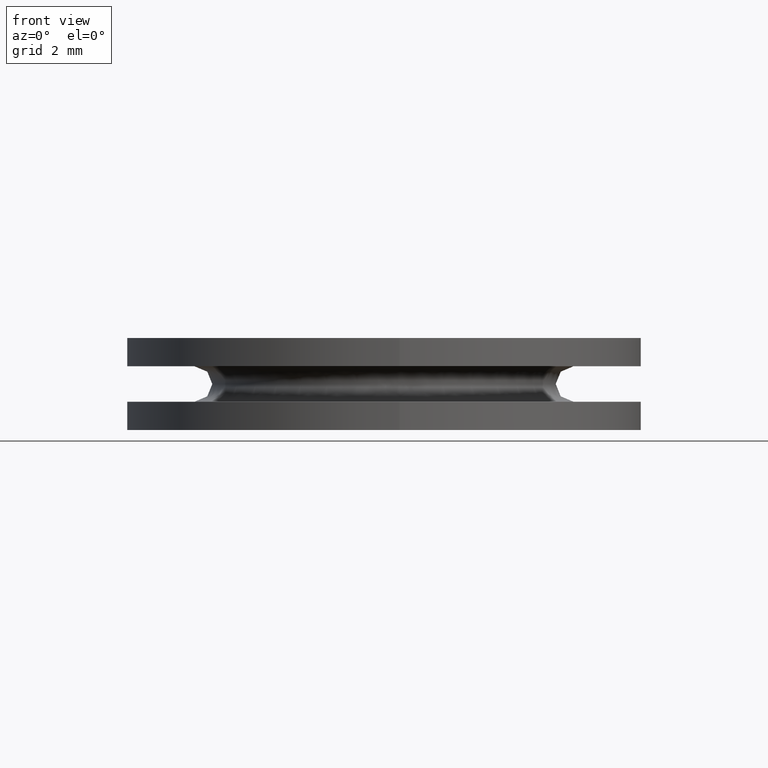
[diagram: clean part render]
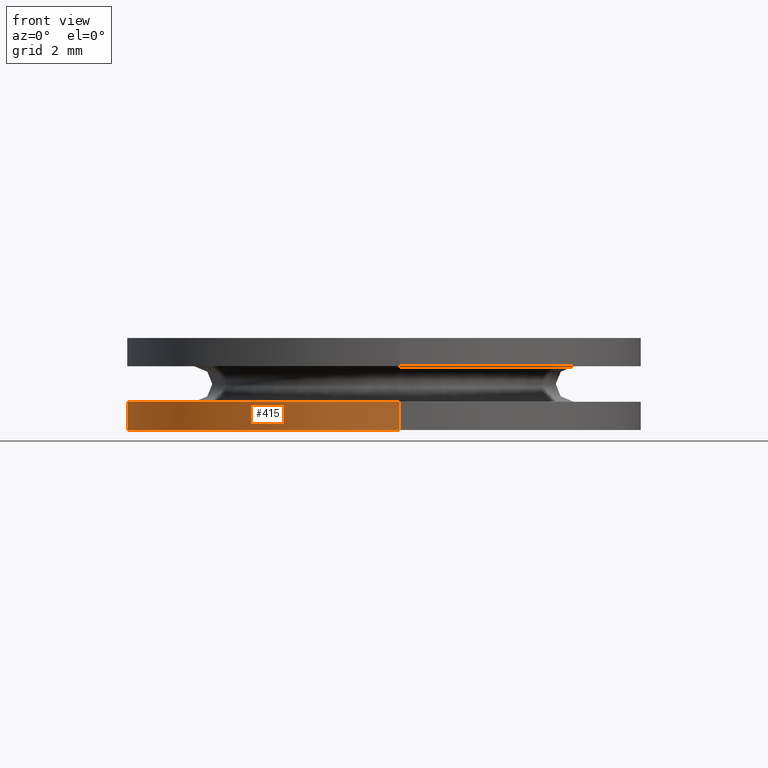
[diagram: same view with one face highlighted and labeled with its STEP entity id]
A machine part, front view. The second image highlights one B-rep face of the part: STEP entity #415.
In plain terms, the highlighted face is a freeform B-spline surface patch.
Its self-contained STEP definition (entity closure, byte-faithful):
#252=CARTESIAN_POINT('',(-0.855743500075938,7.199318617901104,0.799999999999926));
#253=VERTEX_POINT('',#252);
#271=CARTESIAN_POINT('',(0.442599261778933,-7.236476448760612,0.799999999999948));
#272=VERTEX_POINT('',#271);
#286=CARTESIAN_POINT('',(0.442599292946064,-7.236476446854370,6.938894E-018));
#287=VERTEX_POINT('',#286);
#288=CARTESIAN_POINT('',(0.442599261778933,-7.236476448760612,0.799999999999948));
#289=CARTESIAN_POINT('',(0.442599292946064,-7.236476446854370,6.938894E-018));
#290=QUASI_UNIFORM_CURVE('',1,(#288,#289),.UNSPECIFIED.,.F.,.U.);
#291=EDGE_CURVE('',#272,#287,#290,.T.);
#308=CARTESIAN_POINT('',(-0.855743555278183,7.199318611339550,-4.081678E-017));
#309=VERTEX_POINT('',#308);
#325=CARTESIAN_POINT('',(-0.855743500075938,7.199318617901104,0.799999999999926));
#326=CARTESIAN_POINT('',(-0.855743555278183,7.199318611339550,-4.081678E-017));
#327=QUASI_UNIFORM_CURVE('',1,(#325,#326),.UNSPECIFIED.,.F.,.U.);
#328=EDGE_CURVE('',#253,#309,#327,.T.);
#333=CARTESIAN_POINT('',(0.442601850579174,-7.236476290423735,0.819999999999990));
#334=CARTESIAN_POINT('',(-6.793874439844561,-7.679078141002909,0.819999999999990));
#335=CARTESIAN_POINT('',(-7.236476290423735,-0.442601850579174,0.819999999999990));
#336=CARTESIAN_POINT('',(-7.654448870524625,6.391189427042890,0.819999999999990));
#337=CARTESIAN_POINT('',(-0.855748083227264,7.199318073127055,0.819999999999990));
#338=CARTESIAN_POINT('',(0.442601850579174,-7.236476290423735,-0.020500000000000));
#339=CARTESIAN_POINT('',(-6.793874439844561,-7.679078141002909,-0.020500000000000));
#340=CARTESIAN_POINT('',(-7.236476290423735,-0.442601850579174,-0.020500000000000));
#341=CARTESIAN_POINT('',(-7.654448870524625,6.391189427042890,-0.020500000000000));
#342=CARTESIAN_POINT('',(-0.855748083227264,7.199318073127055,-0.020500000000000));
#350=(BOUNDED_SURFACE()B_SPLINE_SURFACE(2,1,((#333,#338),(#334,#339),(#335,#340),(#336,#341),(#337,#342)),.UNSPECIFIED.,.F.,.F.,.U.)B_SPLINE_SURFACE_WITH_KNOTS((3,2,3),(2,2),(0.0,12.012191651965511,23.543895637852390),(0.0,1.0),.UNSPECIFIED.)GEOMETRIC_REPRESENTATION_ITEM()RATIONAL_B_SPLINE_SURFACE(((1.0,1.0),(0.707106781186548,0.707106781186548),(1.0,1.0),(0.718822509939086,0.718822509939086),(0.977505800795127,0.977505800795127)))REPRESENTATION_ITEM('')SURFACE());
#351=CARTESIAN_POINT('',(-7.249999000000000,0.0,0.799999999999990));
#352=VERTEX_POINT('',#351);
#353=CARTESIAN_POINT('',(-7.249999000000000,0.0,0.799999999999990));
#354=CARTESIAN_POINT('',(-7.249999000000001,6.439268553125745,0.799999999999990));
#355=CARTESIAN_POINT('',(-0.855743500075938,7.199318617901104,0.799999999999926));
#363=(BOUNDED_CURVE()B_SPLINE_CURVE(2,(#353,#354,#355),.UNSPECIFIED.,.F.,.U.)B_SPLINE_CURVE_WITH_KNOTS((3,3),(0.0,0.229562581104653),.UNSPECIFIED.)CURVE()GEOMETRIC_REPRESENTATION_ITEM()RATIONAL_B_SPLINE_CURVE((1.0,0.731050706804535,0.956026965066855))REPRESENTATION_ITEM(''));
#364=EDGE_CURVE('',#352,#253,#363,.T.);
#365=ORIENTED_EDGE('',*,*,#364,.T.);
#366=ORIENTED_EDGE('',*,*,#328,.T.);
#367=CARTESIAN_POINT('',(-7.249999000000000,0.0,0.0));
#368=VERTEX_POINT('',#367);
#369=CARTESIAN_POINT('',(-7.249999000000000,0.0,0.0));
#370=CARTESIAN_POINT('',(-7.249998999999999,6.439268503403767,0.0));
#371=CARTESIAN_POINT('',(-0.855743555278183,7.199318611339550,-4.081678E-017));
#379=(BOUNDED_CURVE()B_SPLINE_CURVE(2,(#369,#370,#371),.UNSPECIFIED.,.F.,.U.)B_SPLINE_CURVE_WITH_KNOTS((3,3),(0.0,0.229562579808786),.UNSPECIFIED.)CURVE()GEOMETRIC_REPRESENTATION_ITEM()RATIONAL_B_SPLINE_CURVE((1.0,0.731050708322738,0.956026962526900))REPRESENTATION_ITEM(''));
#380=EDGE_CURVE('',#368,#309,#379,.T.);
#381=ORIENTED_EDGE('',*,*,#380,.F.);
#382=CARTESIAN_POINT('',(0.442599292946064,-7.236476446854370,6.938894E-018));
#383=CARTESIAN_POINT('',(0.221506220959810,-7.249999000000000,0.0));
#384=CARTESIAN_POINT('',(0.0,-7.249999000000000,0.0));
#385=CARTESIAN_POINT('',(-7.249998999999999,-7.249998999999999,0.0));
#386=CARTESIAN_POINT('',(-7.249999000000000,0.0,0.0));
#394=(BOUNDED_CURVE()B_SPLINE_CURVE(2,(#382,#383,#384,#385,#386),.UNSPECIFIED.,.F.,.U.)B_SPLINE_CURVE_WITH_KNOTS((3,2,3),(0.739333023226263,0.750000000000000,1.0),.UNSPECIFIED.)CURVE()GEOMETRIC_REPRESENTATION_ITEM()RATIONAL_B_SPLINE_CURVE((0.976072172374189,0.987502859350927,1.0,0.707106781186547,1.0))REPRESENTATION_ITEM(''));
#395=EDGE_CURVE('',#287,#368,#394,.T.);
#396=ORIENTED_EDGE('',*,*,#395,.F.);
#397=ORIENTED_EDGE('',*,*,#291,.F.);
#398=CARTESIAN_POINT('',(0.442599261778933,-7.236476448760612,0.799999999999948));
#399=CARTESIAN_POINT('',(0.221506205332549,-7.249999000000000,0.799999999999990));
#400=CARTESIAN_POINT('',(0.0,-7.249999000000000,0.799999999999990));
#401=CARTESIAN_POINT('',(-7.249998999999999,-7.249998999999999,0.799999999999990));
#402=CARTESIAN_POINT('',(-7.249999000000000,0.0,0.799999999999990));
#410=(BOUNDED_CURVE()B_SPLINE_CURVE(2,(#398,#399,#400,#401,#402),.UNSPECIFIED.,.F.,.U.)B_SPLINE_CURVE_WITH_KNOTS((3,2,3),(0.739333023969413,0.750000000000000,1.0),.UNSPECIFIED.)CURVE()GEOMETRIC_REPRESENTATION_ITEM()RATIONAL_B_SPLINE_CURVE((0.976072173966902,0.987502860221582,1.0,0.707106781186547,1.0))REPRESENTATION_ITEM(''));
#411=EDGE_CURVE('',#272,#352,#410,.T.);
#412=ORIENTED_EDGE('',*,*,#411,.T.);
#413=EDGE_LOOP('',(#365,#366,#381,#396,#397,#412));
#414=FACE_OUTER_BOUND('',#413,.T.);
#415=ADVANCED_FACE('',(#414),#350,.T.);